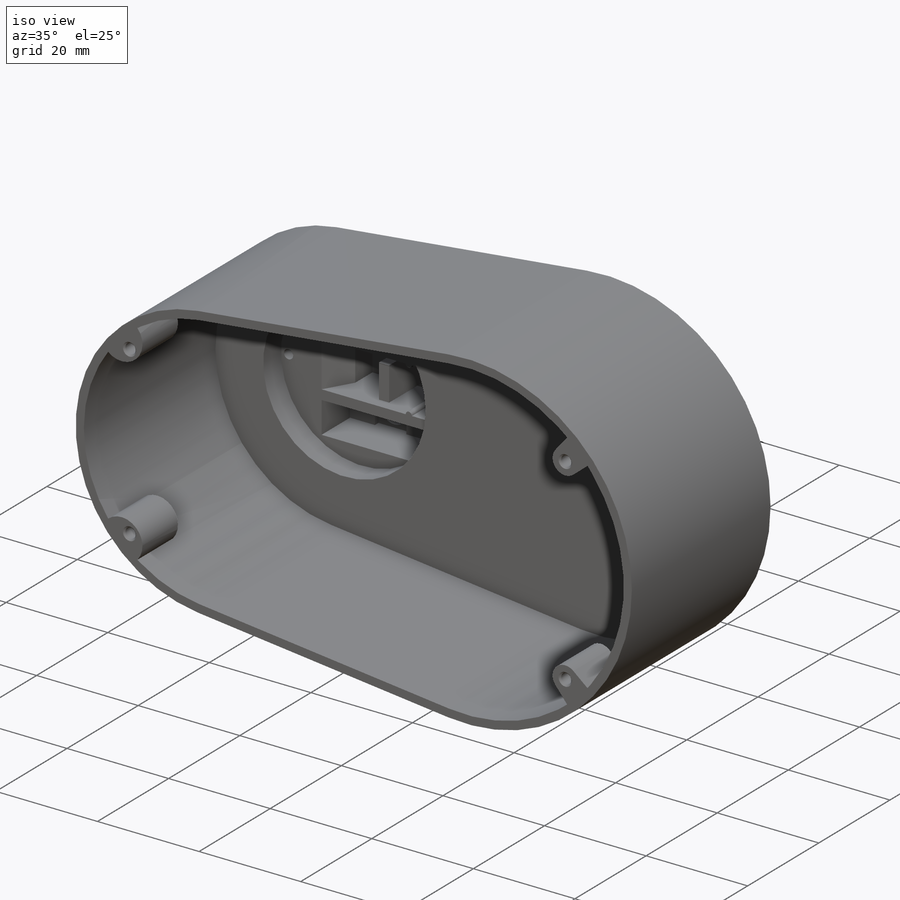
[diagram: iso view]
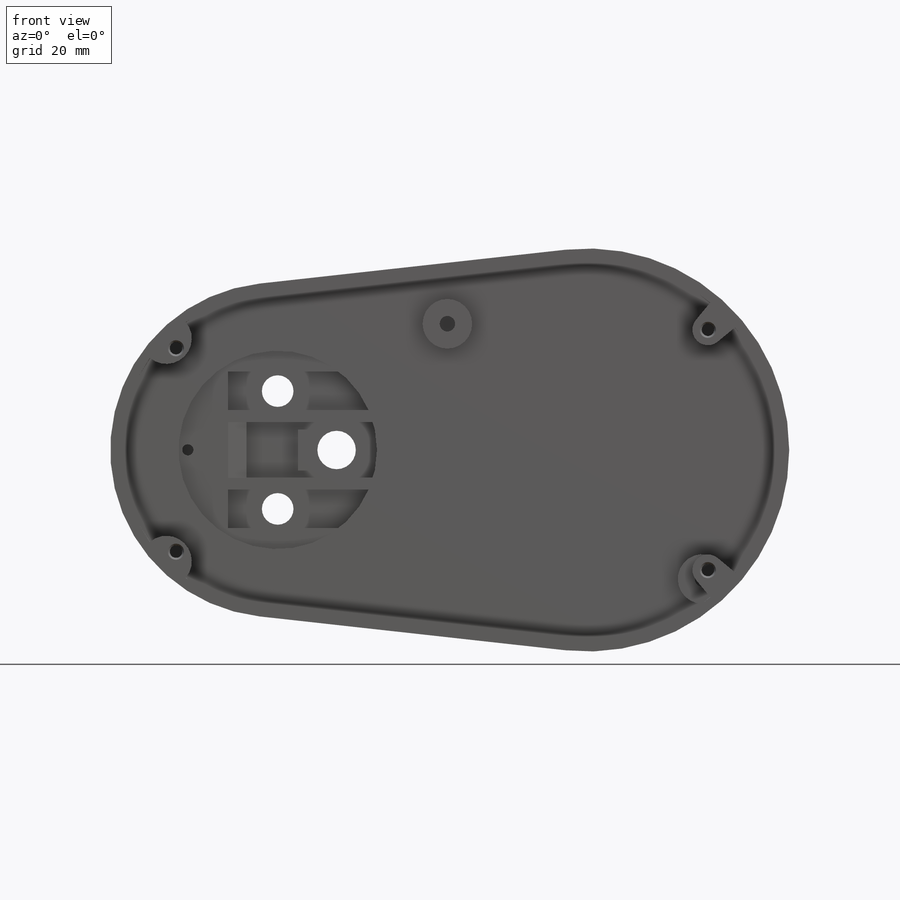
[diagram: front view]
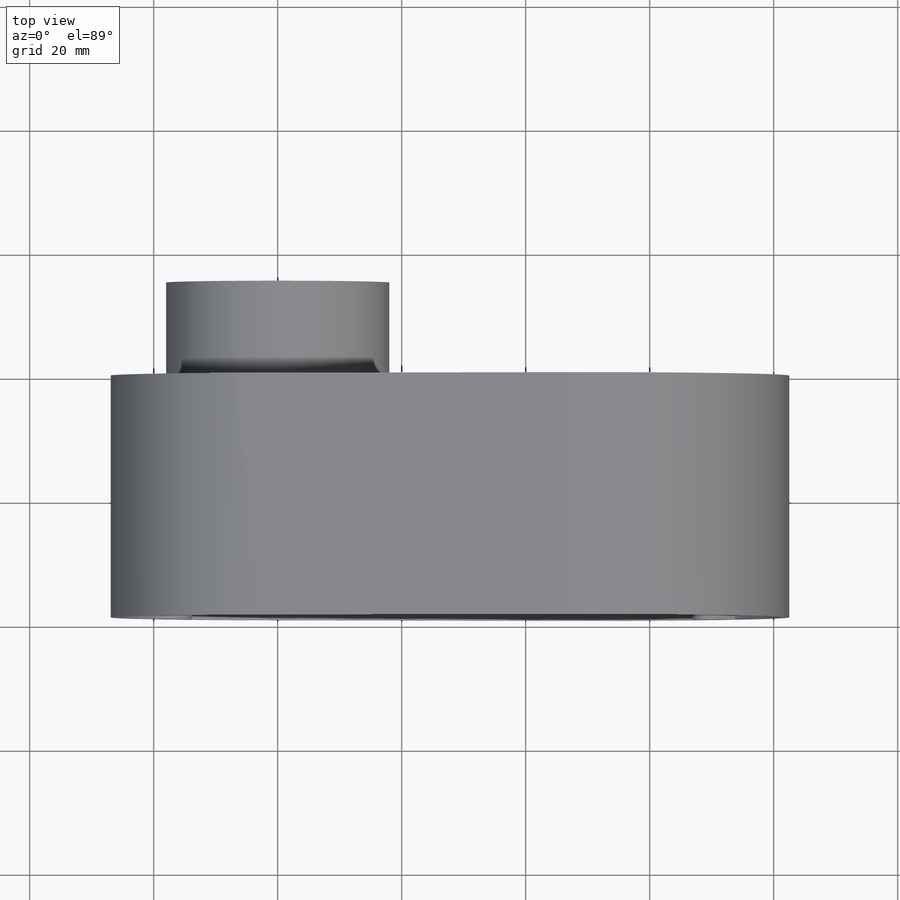
[diagram: top view]
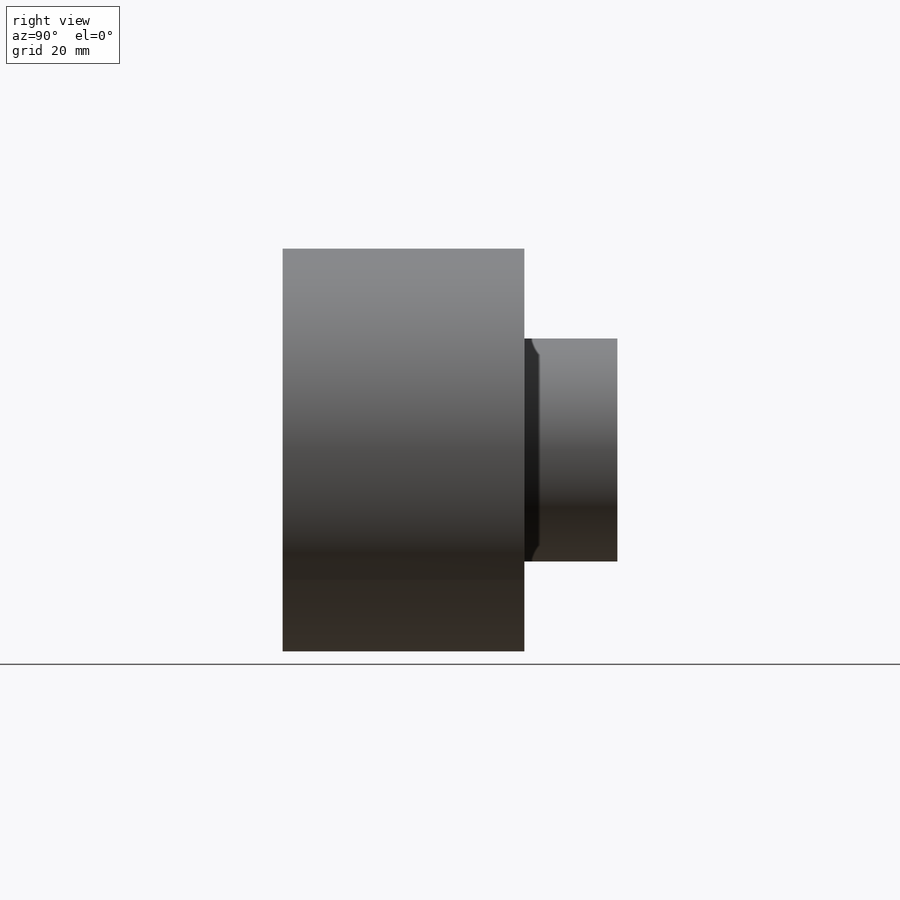
[diagram: right view]
SOLIDWORKS PART (.sldprt)
format: sldprt  version: not decoded by parser v0  size: 1,064,960 bytes
history: native  units: mm
features: extrude x7, cut_extrude x7, mirror x3, chamfer x2, material x1, plane x1, sketch x1, fillet x1 + 15 further entries (+108 scaffold rows collapsed; 305 parser-record rows omitted)
feature tree (451):
  scaffold x108  (default folders/planes/origin — collapsed)
  material  "Acier non allié"
  plane  "Plan de face"
  "Plan de dessus"
  "Plan de droite"
  sketch  "Esquisse1"  dims[GUID_DATA1=3891427352.0]
  parser-record x305  (decoder bookkeeping rows leaked as tree rows — omitted from the tree; the rows remain in map.json)
  extrude  "Boss.-Extru.1"  Depth=2mm
  "Esquisse2"
  extrude  "Boss.-Extru.2"  Depth=15mm
  "Esquisse3"
  cut_extrude  "Enlèv. mat.-Extru.1"  [1 undecoded]
  "Esquisse4"
  cut_extrude  "Enlèv. mat.-Extru.2"  Depth=12mm
  "Esquisse5"
  cut_extrude  "Enlèv. mat.-Extru.3"  Depth=2mm
  fillet  "Congé1"  Radius=2mm
  "Esquisse6"
  extrude  "Boss.-Extru.3"  [1 undecoded]
  mirror  "Symétrie1"
  "Esquisse7"
  extrude  "Boss.-Extru.4"  [1 undecoded]
  "Esquisse9"
  cut_extrude  "Enlèv. mat.-Extru.4"  Depth=4mm
  "Esquisse10"
  cut_extrude  "Enlèv. mat.-Extru.6"  Depth=1mm
  mirror  "Symétrie2"
  "Esquisse11"
  cut_extrude  "Enlèv. mat.-Extru.7"  Depth=10mm
  chamfer  "Chanfrein1"  Distance=3mm Angle=60deg
  "Esquisse12"
  extrude  "Boss.-Extru.5"  Depth=37mm
  "Esquisse13"
  cut_extrude  "Enlèv. mat.-Extru.12"  Depth=2mm
  "Esquisse14"
  extrude  "Boss.-Extru.6"  Depth=10mm
  "Esquisse16"
  extrude  "Boss.-Extru.7"  Depth=10mm
  mirror  "Symétrie3"
  chamfer  "Chanfrein4"  Distance=0.3mm Angle=45deg
decode coverage: 15 of 21 modeling features carry decoded parameters; 15 rows unclassified (native names shown)
note: 3 parameter values undecoded
summary: no parameter record found for 3 features
note: suppression state not decoded; provenance and decode notes live in map.json
